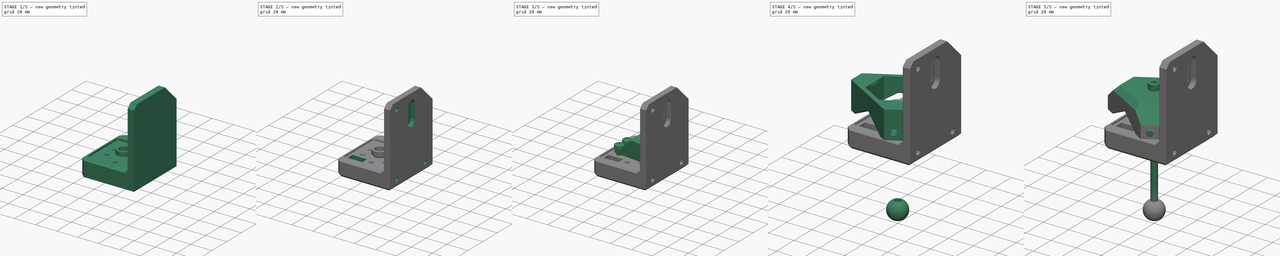
[diagram: build sequence overview — one tinted view per stage of 5, left to right]
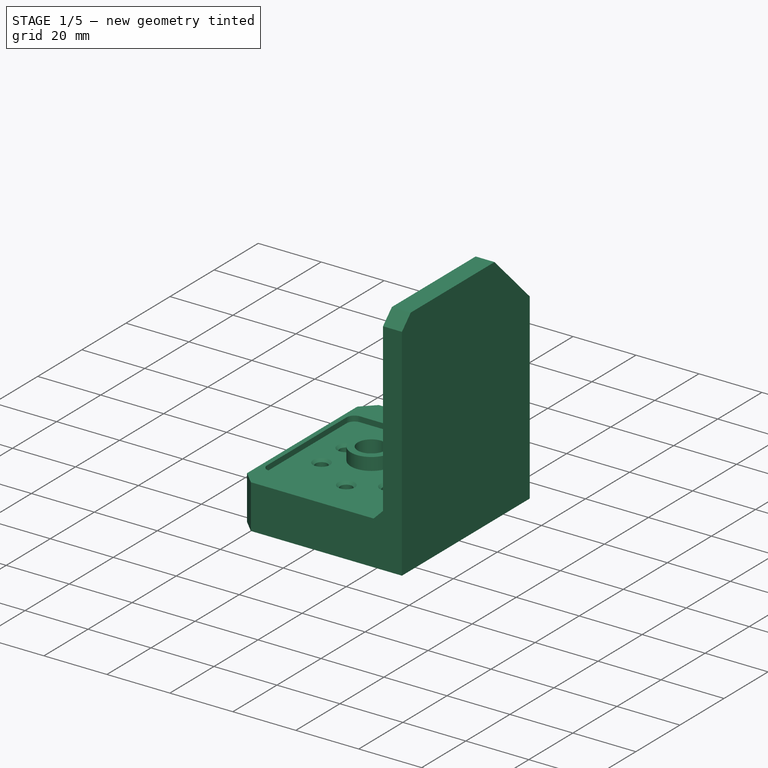
[diagram: stage 1 of 5 — iso view after this stage's code; geometry added in this stage tinted green]
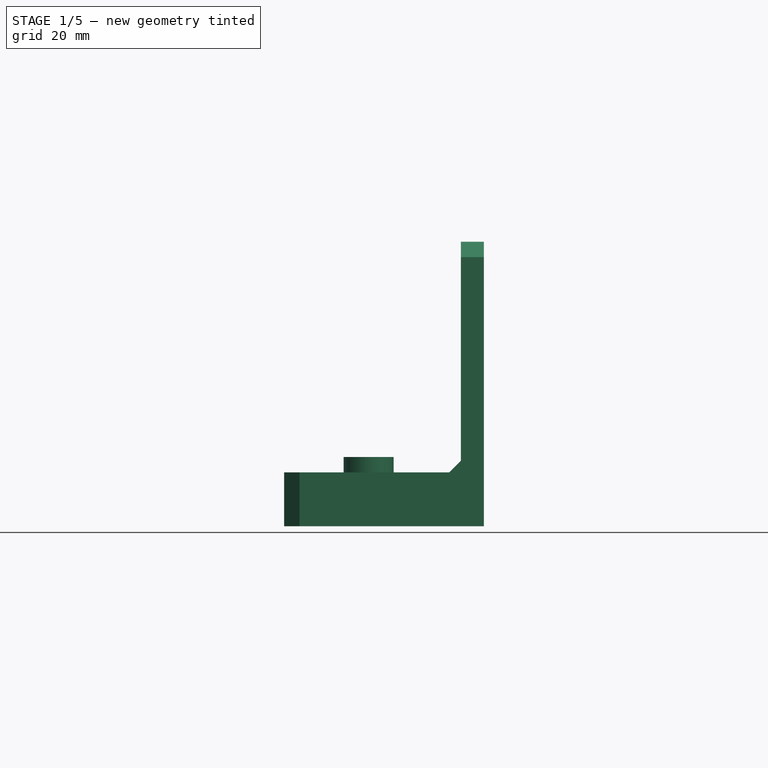
[diagram: stage 1 of 5 — front view after this stage's code; geometry added in this stage tinted green]
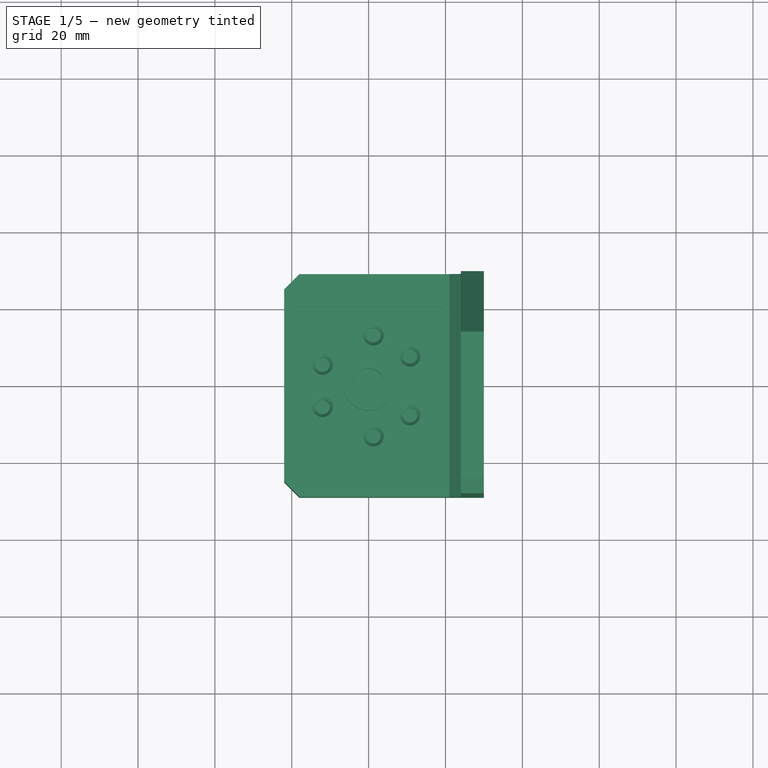
[diagram: stage 1 of 5 — top view after this stage's code; geometry added in this stage tinted green]
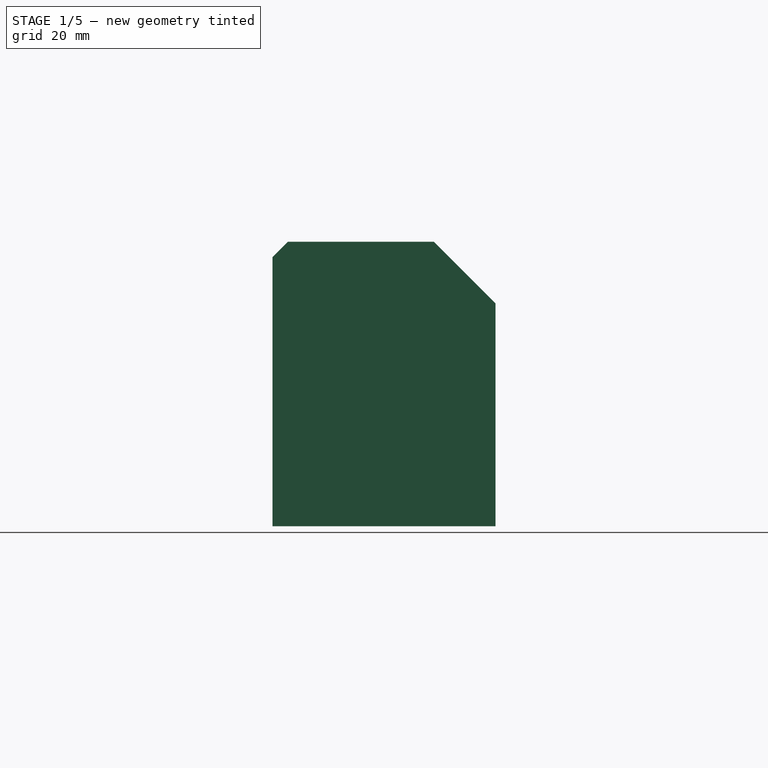
[diagram: stage 1 of 5 — right view after this stage's code; geometry added in this stage tinted green]
FCSTD DOCUMENT  (FreeCAD 0.19R24276 (Git))
Label: fabricatable-probe-assembly
License: All rights reserved
LicenseURL: http://en.wikipedia.org/wiki/All_rights_reserved
objects: Part::Feature×31, Sketcher::SketchObject×21, PartDesign::Chamfer×17, PartDesign::Pocket×10, Part::FeaturePython×8, PartDesign::Pad×6, PartDesign::Body×5, App::Part×4, PartDesign::PolarPattern×4, PartDesign::Hole×2, PartDesign::Mirrored×2, App::FeaturePython×1, PartDesign::Revolution×1, Part::Compound×1, PartDesign::Fillet×1, PartDesign::Plane×1, PartDesign::Groove×1
note: 146 computed .brp shape members not serialized (recipe doc carries the construction recipe); baked Part::Feature solids carry a one-line shape summary decoded from their .brp

FEATURE [Sketcher::SketchObject] Sketch008
  FullyConstrained = true
  MapMode = 5
  Placement = pos=(0,0,0) rot=(1,0,0;1.5708rad)
  Support = -> [XZ_Plane003]
  sketch-geometry (6):
    g0: LineSegment StartX=-22 StartY=0 StartZ=0 EndX=24 EndY=0 EndZ=0
    g1: LineSegment StartX=24 StartY=0 StartZ=0 EndX=24 EndY=60 EndZ=0
    g2: LineSegment StartX=24 StartY=60 StartZ=0 EndX=30 EndY=60 EndZ=0
    g3: LineSegment StartX=30 StartY=60 StartZ=0 EndX=30 EndY=-14 EndZ=0
    g4: LineSegment StartX=30 StartY=-14 StartZ=0 EndX=-22 EndY=-14 EndZ=0
    g5: LineSegment StartX=-22 StartY=-14 StartZ=0 EndX=-22 EndY=0 EndZ=0
  constraints (18):
    c: Horizontal(g0)
    c: Coincident(g0,g1)
    c: Vertical(g1)
    c: Coincident(g1,g2)
    c: Horizontal(g2)
    c: Coincident(g2,g3)
    c: Vertical(g3)
    c: Coincident(g3,g4)
    c: Horizontal(g4)
    c: Coincident(g4,g5)
    c: Coincident(g5,g0)
    c: Vertical(g5)
    c: DistanceX(g-2,g4) = -22
    c: PointOnObject(g0,g-1)
    c: DistanceX(g-2,g0) = 24
    c: DistanceX(g-2,g3) = 30
    c: DistanceY(g-1,g2) = 60
    c: DistanceY(g-1,g4) = -14
FEATURE [PartDesign::Pad] Pad003
  Direction = (1,1,1)
  Length = 58
  Length2 = 100
  Midplane = true
  Placement = pos=(0,0,0) rot=(1,0,0;1.5708rad)
  Profile = -> Sketch008
  Type = 0
FEATURE [PartDesign::Chamfer] Chamfer005
  Angle = 45
  Base = -> Pad003 [Edge9]
  BaseFeature = -> Pad003
  ChamferType = 0
  FlipDirection = false
  Placement = pos=(0,0,0) rot=(1,0,0;1.5708rad)
  Size = 16
  Size2 = 1
  SupportTransform = false
FEATURE [PartDesign::Chamfer] Chamfer006
  Angle = 45
  Base = -> Chamfer005 [Edge14,Edge17]
  BaseFeature = -> Chamfer005
  ChamferType = 0
  FlipDirection = false
  Placement = pos=(0,0,0) rot=(1,0,0;1.5708rad)
  Size = 4
  Size2 = 1
  SupportTransform = false
FEATURE [PartDesign::Chamfer] Chamfer007
  Angle = 45
  Base = -> Chamfer006 [Edge5]
  BaseFeature = -> Chamfer006
  ChamferType = 0
  FlipDirection = false
  Placement = pos=(0,0,0) rot=(1,0,0;1.5708rad)
  Size = 4
  Size2 = 1
  SupportTransform = false
FEATURE [PartDesign::Chamfer] Chamfer008
  Angle = 45
  Base = -> Chamfer007 [Edge11]
  BaseFeature = -> Chamfer007
  ChamferType = 0
  FlipDirection = false
  Placement = pos=(0,0,0) rot=(1,0,0;1.5708rad)
  Size = 3
  Size2 = 1
  SupportTransform = false
FEATURE [Sketcher::SketchObject] Sketch010
  FullyConstrained = true
  MapMode = 5
  Placement = pos=(0,0,0) rot=(0,0,1;3.14159rad)
  Support = -> [Chamfer008]
  sketch-geometry (5):
    g0: LineSegment StartX=20.5 StartY=20.5 StartZ=0 EndX=-20.5 EndY=20.5 EndZ=0
    g1: LineSegment StartX=-20.5 StartY=20.5 StartZ=0 EndX=-20.5 EndY=-20.5 EndZ=0
    g2: LineSegment StartX=-20.5 StartY=-20.5 StartZ=0 EndX=20.5 EndY=-20.5 EndZ=0
    g3: LineSegment StartX=20.5 StartY=-20.5 StartZ=0 EndX=20.5 EndY=20.5 EndZ=0
    g4: Circle CenterX=0 CenterY=0 CenterZ=0 NormalX=0 NormalY=0 NormalZ=1 AngleXU=0 Radius=28.9914
  constraints (14):
    c: Coincident(g0,g1)
    c: Coincident(g1,g2)
    c: Coincident(g2,g3)
    c: Coincident(g3,g0)
    c: Equal(g0,g1)
    c: Equal(g0,g2)
    c: Equal(g0,g3)
    c: PointOnObject(g0,g4)
    c: PointOnObject(g1,g4)
    c: PointOnObject(g2,g4)
    c: PointOnObject(g3,g4)
    c: Coincident(g4,g-1)
    c: Distance(g0) = 41
    c: Horizontal(g0)
FEATURE [PartDesign::Pocket] Pocket004
  BaseFeature = -> Chamfer008
  Length = 1.7
  Length2 = 100
  Placement = pos=(0,0,0) rot=(1,0,0;1.5708rad)
  Profile = -> Sketch010
  Type = 0
FEATURE [PartDesign::Fillet] Fillet
  Base = -> Pocket004 [Edge41,Edge43,Edge38,Edge39]
  BaseFeature = -> Pocket004
  Placement = pos=(0,0,0) rot=(1,0,0;1.5708rad)
  Radius = 2.5
  SupportTransform = false
FEATURE [Sketcher::SketchObject] Sketch011
  FullyConstrained = true
  MapMode = 5
  Placement = pos=(0,0,-1.7) rot=(0,0,1;3.14159rad)
  Support = -> [Fillet]
  sketch-geometry (2):
    g0: Circle CenterX=12 CenterY=5.5 CenterZ=0 NormalX=0 NormalY=0 NormalZ=1 AngleXU=0 Radius=1.9
    g1: Circle CenterX=12 CenterY=-5.5 CenterZ=0 NormalX=0 NormalY=0 NormalZ=1 AngleXU=0 Radius=1.9
  constraints (5):
    c: Symmetric(g1,g0,g-1)
    c: Diameter(g0) = 3.8
    c: Equal(g0,g1)
    c: DistanceX(g-2,g0) = 12
    c: DistanceY(g-1,g0) = 5.5
FEATURE [PartDesign::Pocket] Pocket005
  BaseFeature = -> Fillet
  Length = 5
  Length2 = 100
  Placement = pos=(0,0,0) rot=(1,0,0;1.5708rad)
  Profile = -> Sketch011
  Type = 0
FEATURE [PartDesign::PolarPattern] PolarPattern003
  Angle = 360
  Axis = -> Sketch011 [N_Axis]
  BaseFeature = -> Pocket005
  Occurrences = 3
  Originals = -> [Pocket005]
  Placement = pos=(0,0,0) rot=(1,0,0;1.5708rad)
FEATURE [PartDesign::Chamfer] Chamfer009
  Angle = 45
  Base = -> PolarPattern003 [Edge51,Edge52,Edge49,Edge50,Edge53,Edge54]
  BaseFeature = -> PolarPattern003
  ChamferType = 0
  FlipDirection = false
  Placement = pos=(0,0,0) rot=(1,0,0;1.5708rad)
  Size = 0.8
  Size2 = 1
  SupportTransform = false
FEATURE [PartDesign::Body] Body001  label="Bracket and pcb holder"
  Group = -> [Sketch008,Pad003,Chamfer005,Chamfer006,Chamfer007,Chamfer008,Sketch010,Pocket004,Fillet,Sketch011,Pocket005,PolarPattern003,Chamfer009,Sketch012,Hole001,Mirrored,DatumPlane,Mirrored001,Sketch014,Pocket006,Sketch015,Pocket007,Chamfer013,Sketch019,Pocket009,Chamfer015,Chamfer016,Sketch020,Pocket010]
  Origin = -> Origin003
  Tip = -> Pocket010
FEATURE [App::Part] Part003  label="Bracket"
  Group = -> [Screw,Array001,Compound,Nut,Array003,Part,Body001]
  Origin = -> Origin007
FEATURE [Sketcher::SketchObject] Sketch021
  FullyConstrained = true
  MapMode = 5
  Support = -> [XY_Plane008]
  sketch-geometry (2):
    g0: Circle CenterX=0 CenterY=0 CenterZ=0 NormalX=0 NormalY=0 NormalZ=1 AngleXU=0 Radius=4.35
    g1: Circle CenterX=0 CenterY=0 CenterZ=0 NormalX=0 NormalY=0 NormalZ=1 AngleXU=0 Radius=6.5
  constraints (4):
    c: Coincident(g0,g-1)
    c: Coincident(g1,g0)
    c: Diameter(g1) = 13
    c: Diameter(g0) = 8.7
FEATURE [PartDesign::Pad] Pad005
  Direction = (1,1,1)
  Length = 4
  Length2 = 100
  Profile = -> Sketch021
  Type = 0
FEATURE [PartDesign::Body] Body004  label="Bonus adapter - larger spring"
  Group = -> [Sketch021,Pad005]
  Origin = -> Origin008
  Tip = -> Pad005
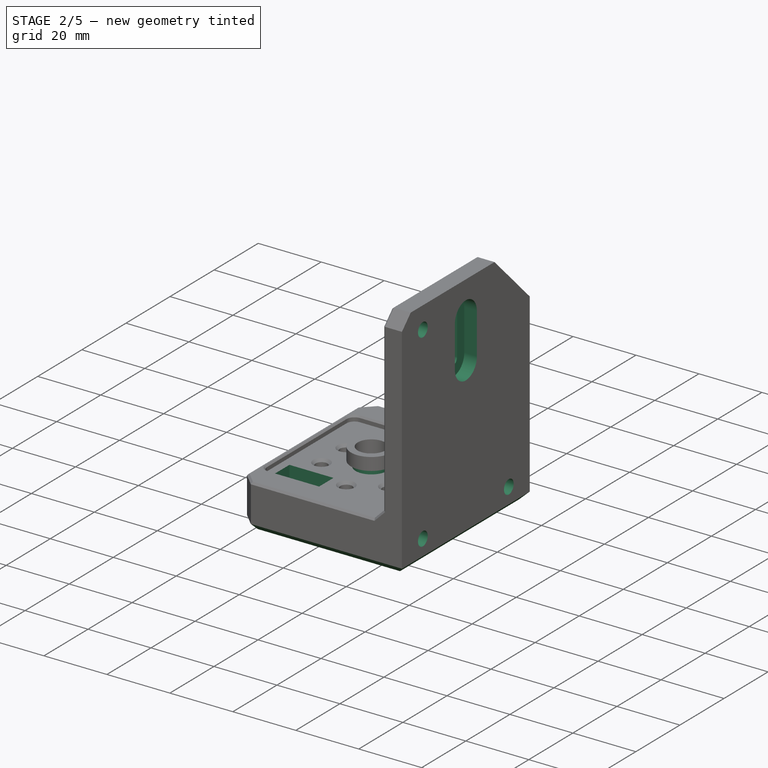
[diagram: stage 2 of 5 — iso view after this stage's code; geometry added in this stage tinted green]
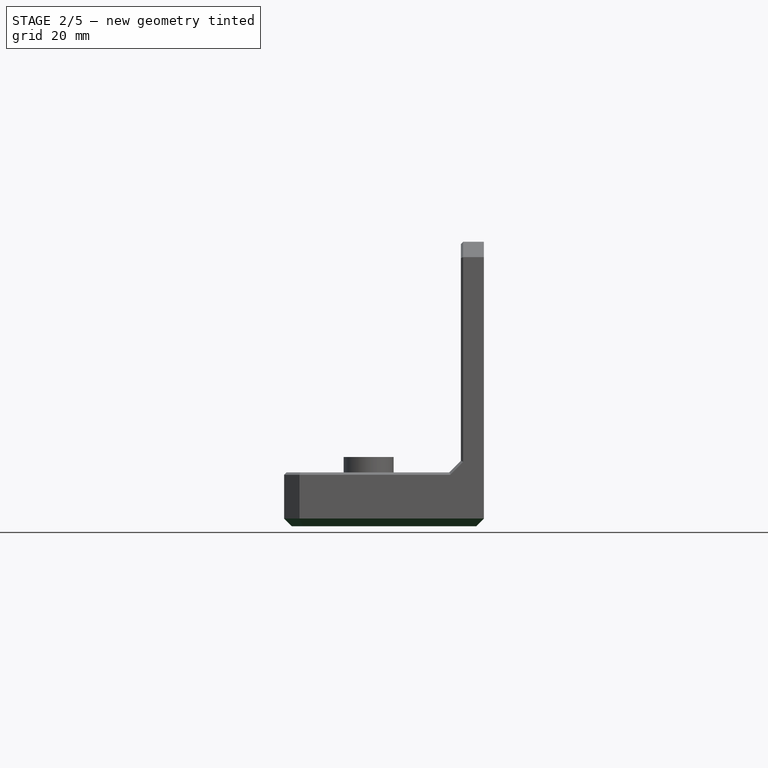
[diagram: stage 2 of 5 — front view after this stage's code; geometry added in this stage tinted green]
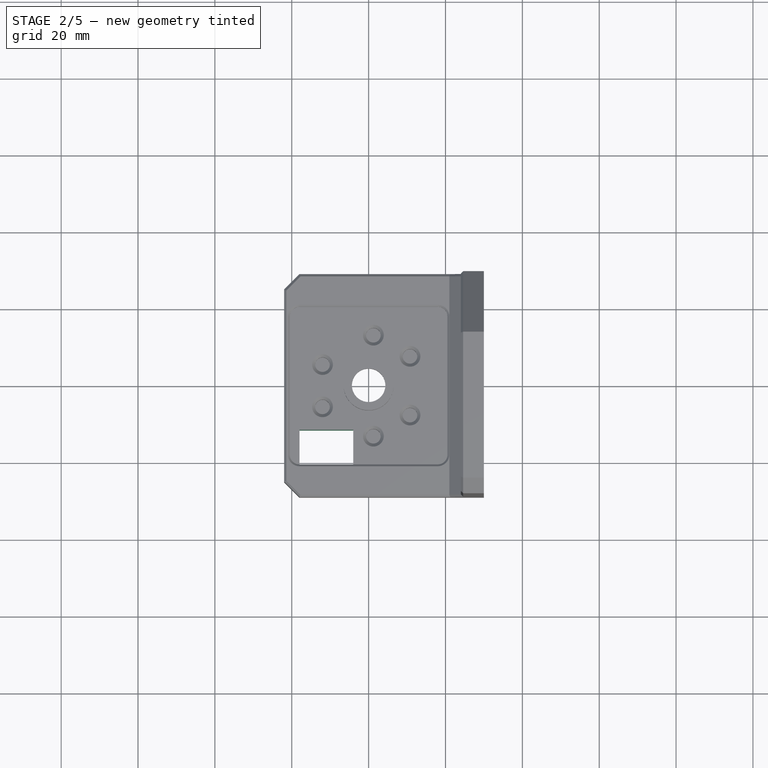
[diagram: stage 2 of 5 — top view after this stage's code; geometry added in this stage tinted green]
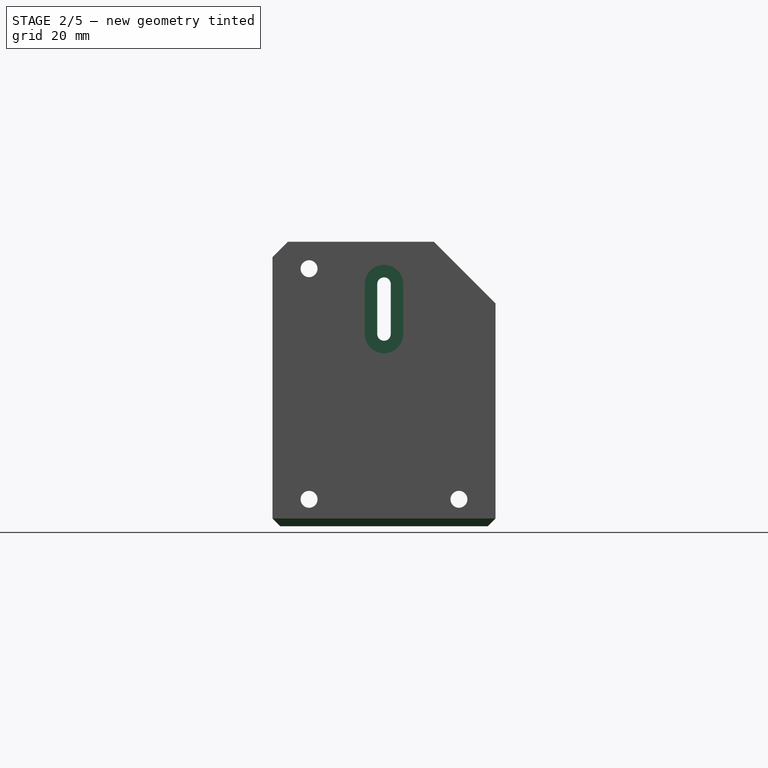
[diagram: stage 2 of 5 — right view after this stage's code; geometry added in this stage tinted green]
FEATURE [Sketcher::SketchObject] Sketch012
  FullyConstrained = true
  MapMode = 5
  Placement = pos=(-22,0,0) rot=(0.707107,0,-0.707107;3.14159rad)
  Support = -> [Chamfer009]
  sketch-geometry (1):
    g0: Circle CenterX=7 CenterY=19.5 CenterZ=0 NormalX=0 NormalY=0 NormalZ=1 AngleXU=0 Radius=2.5
  constraints (3):
    c: Diameter(g0) = 5
    c: DistanceX(g-2,g0) = 7
    c: DistanceY(g-1,g0) = 19.5
FEATURE [PartDesign::Hole] Hole001
  BaseFeature = -> Chamfer009
  Depth = 25
  DepthType = 1
  Diameter = 4.4
  DrillForDepth = false
  DrillPoint = 1
  DrillPointAngle = 118
  HoleCutCountersinkAngle = 90
  HoleCutCustomValues = false
  HoleCutDepth = 46
  HoleCutDiameter = 8.5
  HoleCutType = 1
  ModelActualThread = false
  Placement = pos=(0,0,0) rot=(1,0,0;1.5708rad)
  Profile = -> Sketch012
  Tapered = false
  TaperedAngle = 90
  ThreadAngle = 0
  ThreadClass = 0
  ThreadCutOffInner = 0
  ThreadCutOffOuter = 0
  ThreadDirection = 0
  ThreadFit = 0
  ThreadPitch = 0
  ThreadSize = 0
  ThreadType = 0
  Threaded = false
FEATURE [PartDesign::Mirrored] Mirrored
  BaseFeature = -> Hole001
  MirrorPlane = -> XZ_Plane003
  Originals = -> [Hole001]
  Placement = pos=(0,0,0) rot=(1,0,0;1.5708rad)
FEATURE [PartDesign::Plane] DatumPlane
  Length = 66.296
  Placement = pos=(0,0,23) rot=(0,0,1;0rad)
  ResizeMode = 0
  Width = 69.296
FEATURE [PartDesign::Mirrored] Mirrored001
  BaseFeature = -> Mirrored
  MirrorPlane = -> DatumPlane
  Originals = -> [Hole001]
  Placement = pos=(0,0,0) rot=(1,0,0;1.5708rad)
  Refine = true
FEATURE [Sketcher::SketchObject] Sketch014
  FullyConstrained = true
  MapMode = 5
  Placement = pos=(30,0,0) rot=(0.707107,0,0.707107;3.14159rad)
  Support = -> [Mirrored001]
  sketch-geometry (4):
    g0: ArcOfCircle CenterX=36 CenterY=0 CenterZ=0 NormalX=0 NormalY=0 NormalZ=1 AngleXU=0 Radius=5 StartAngle=1.5708 EndAngle=4.71239
    g1: ArcOfCircle CenterX=49 CenterY=7e-16 CenterZ=0 NormalX=0 NormalY=0 NormalZ=1 AngleXU=0 Radius=5 StartAngle=4.71239 EndAngle=7.85398
    g2: LineSegment StartX=36 StartY=-5 StartZ=0 EndX=49 EndY=-5 EndZ=0
    g3: LineSegment StartX=36 StartY=5 StartZ=0 EndX=49 EndY=5 EndZ=0
  constraints (10):
    c: Tangent(g0,g3) = 1.5708
    c: Tangent(g0,g2) = -1.5708
    c: Tangent(g2,g1) = -1.5708
    c: Tangent(g3,g1) = 1.5708
    c: Horizontal(g2)
    c: Equal(g0,g1)
    c: PointOnObject(g0,g-1)
    c: DistanceX(g-2,g1) = 49
    c: DistanceX(g-2,g0) = 36
    c: Diameter(g1) = 10
FEATURE [PartDesign::Pocket] Pocket006
  BaseFeature = -> Mirrored001
  Length = 4
  Length2 = 100
  Placement = pos=(0,0,0) rot=(1,0,0;1.5708rad)
  Profile = -> Sketch014
  Type = 0
FEATURE [Sketcher::SketchObject] Sketch015
  ExternalGeometry = -> [Pocket006]
  FullyConstrained = true
  MapMode = 5
  Placement = pos=(26,0,-5.5e-15) rot=(0.707107,0,0.707107;3.14159rad)
  Support = -> [Pocket006]
  sketch-geometry (4):
    g0: ArcOfCircle CenterX=36 CenterY=0 CenterZ=0 NormalX=0 NormalY=0 NormalZ=1 AngleXU=0 Radius=1.75 StartAngle=1.5708 EndAngle=4.71239
    g1: ArcOfCircle CenterX=49 CenterY=-5.129e-12 CenterZ=0 NormalX=0 NormalY=0 NormalZ=1 AngleXU=0 Radius=1.75 StartAngle=4.71239 EndAngle=7.85398
    g2: LineSegment StartX=36 StartY=-1.75 StartZ=0 EndX=49 EndY=-1.75 EndZ=0
    g3: LineSegment StartX=36 StartY=1.75 StartZ=0 EndX=49 EndY=1.75 EndZ=0
  constraints (8):
    c: Tangent(g0,g3) = 1.5708
    c: Tangent(g0,g2) = -1.5708
    c: Tangent(g2,g1) = -1.5708
    c: Tangent(g3,g1) = 1.5708
    c: Horizontal(g2)
    c: Coincident(g0,g-3)
    c: Coincident(g1,g-4)
    c: Diameter(g1) = 3.5
FEATURE [PartDesign::Pocket] Pocket007
  BaseFeature = -> Pocket006
  Length = 5
  Length2 = 100
  Placement = pos=(0,0,0) rot=(1,0,0;1.5708rad)
  Profile = -> Sketch015
  Type = 0
FEATURE [PartDesign::Chamfer] Chamfer013
  Angle = 45
  Base = -> Pocket007 [Face36]
  BaseFeature = -> Pocket007
  ChamferType = 0
  FlipDirection = false
  Placement = pos=(0,0,0) rot=(1,0,0;1.5708rad)
  Size = 2
  Size2 = 1
  SupportTransform = false
FEATURE [PartDesign::Body] Body003  label="Spring holder"
  Group = -> [Sketch016,Pad004,Chamfer010,Chamfer011,Chamfer012,Sketch017,Groove,Sketch018,Pocket008,Chamfer014]
  Origin = -> Origin006
  Placement = pos=(0,0,41) rot=(0,0,1;0rad)
  Tip = -> Chamfer014
  expr: .Placement.Base.z = 27 + 14
FEATURE [Sketcher::SketchObject] Sketch019
  ExternalGeometry = -> [Chamfer013]
  FullyConstrained = true
  MapMode = 5
  Placement = pos=(0,0,-1.7) rot=(0,0,1;3.14159rad)
  Support = -> [Chamfer013]
  sketch-geometry (4):
    g0: LineSegment StartX=18 StartY=20.5 StartZ=0 EndX=4 EndY=20.5 EndZ=0
    g1: LineSegment StartX=4 StartY=20.5 StartZ=0 EndX=4 EndY=11.5 EndZ=0
    g2: LineSegment StartX=4 StartY=11.5 StartZ=0 EndX=18 EndY=11.5 EndZ=0
    g3: LineSegment StartX=18 StartY=11.5 StartZ=0 EndX=18 EndY=20.5 EndZ=0
  constraints (11):
    c: Coincident(g0,g1)
    c: Coincident(g1,g2)
    c: Coincident(g2,g3)
    c: Coincident(g3,g0)
    c: Horizontal(g0)
    c: Horizontal(g2)
    c: Vertical(g1)
    c: Vertical(g3)
    c: Coincident(g0,g-3)
    c: Distance(g1) = 9
    c: Distance(g2) = 14
FEATURE [PartDesign::Pocket] Pocket009
  BaseFeature = -> Chamfer013
  Length = 5
  Length2 = 100
  Placement = pos=(0,0,0) rot=(1,0,0;1.5708rad)
  Profile = -> Sketch019
  Type = 1
FEATURE [PartDesign::Chamfer] Chamfer015
  Angle = 45
  Base = -> Pocket009 [Edge3,Edge5,Edge7,Edge40,Edge44,Edge43,Edge42,Edge23,Edge39,Edge24,Edge25,Edge9]
  BaseFeature = -> Pocket009
  ChamferType = 0
  FlipDirection = false
  Placement = pos=(0,0,0) rot=(1,0,0;1.5708rad)
  Size = 0.6
  Size2 = 1
  SupportTransform = false
FEATURE [PartDesign::Chamfer] Chamfer016
  Angle = 45
  Base = -> Chamfer015 [Edge48]
  BaseFeature = -> Chamfer015
  ChamferType = 0
  FlipDirection = false
  Placement = pos=(0,0,0) rot=(1,0,0;1.5708rad)
  Size = 0.49
  Size2 = 1
  SupportTransform = false
FEATURE [Sketcher::SketchObject] Sketch020
  FullyConstrained = true
  MapMode = 5
  Placement = pos=(0,0,-1.7) rot=(0,0,1;3.14159rad)
  Support = -> [Chamfer016]
  sketch-geometry (1):
    g0: Circle CenterX=0 CenterY=0 CenterZ=0 NormalX=0 NormalY=0 NormalZ=1 AngleXU=0 Radius=5
  constraints (2):
    c: Coincident(g0,g-1)
    c: Diameter(g0) = 10
FEATURE [PartDesign::Pocket] Pocket010
  BaseFeature = -> Chamfer016
  Length = 5
  Length2 = 100
  Placement = pos=(0,0,0) rot=(1,0,0;1.5708rad)
  Profile = -> Sketch020
  Type = 1
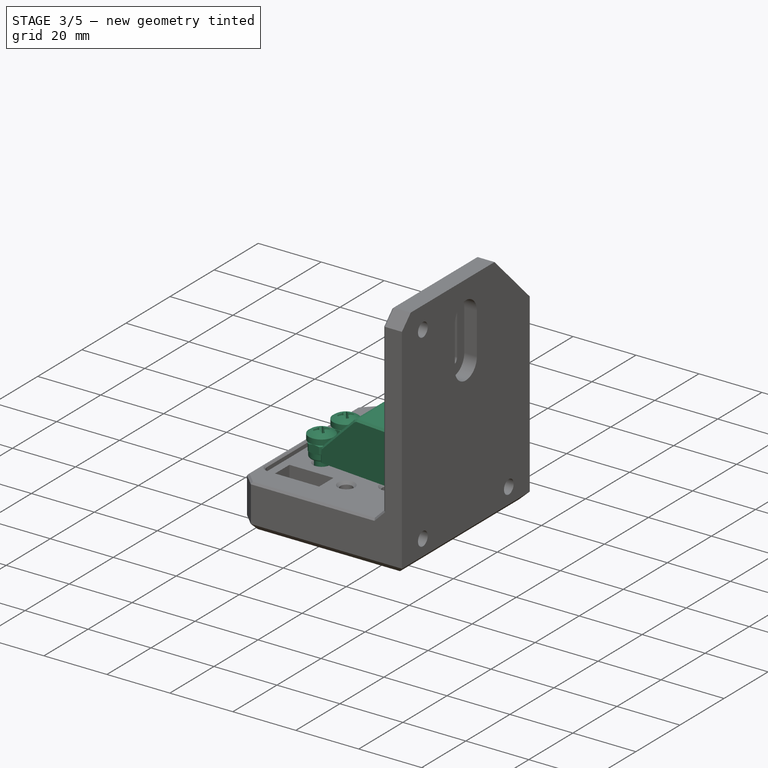
[diagram: stage 3 of 5 — iso view after this stage's code; geometry added in this stage tinted green]
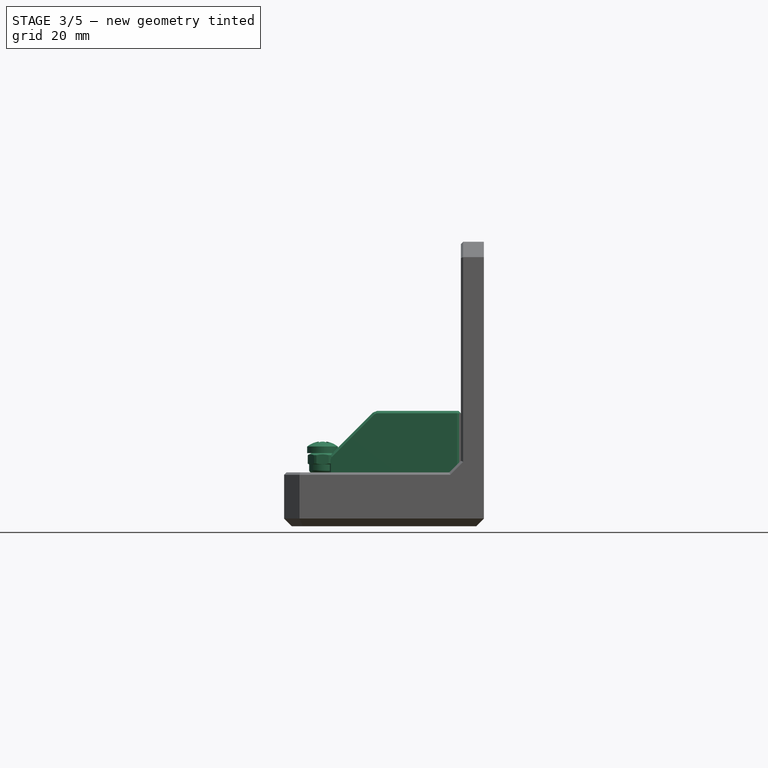
[diagram: stage 3 of 5 — front view after this stage's code; geometry added in this stage tinted green]
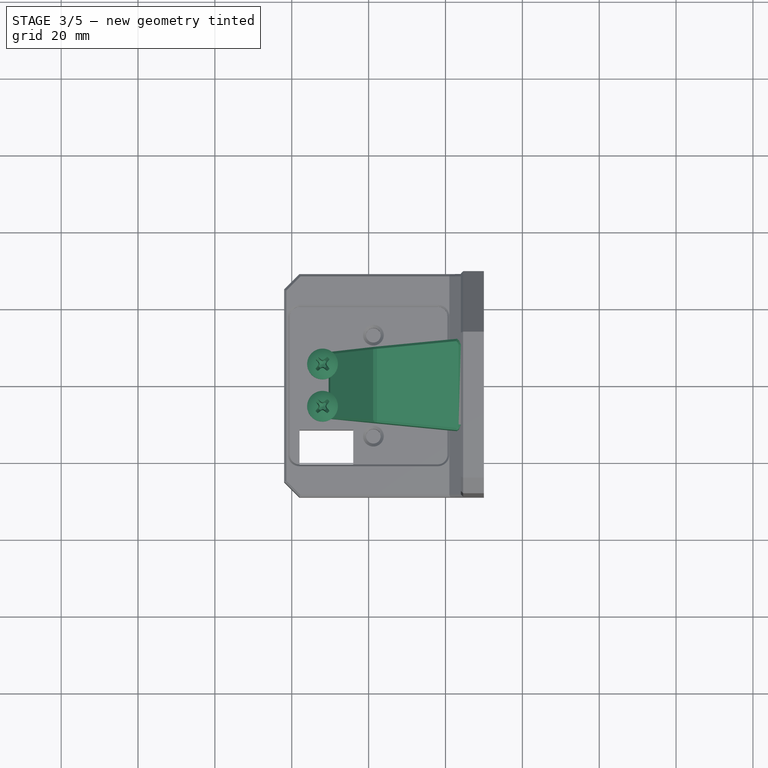
[diagram: stage 3 of 5 — top view after this stage's code; geometry added in this stage tinted green]
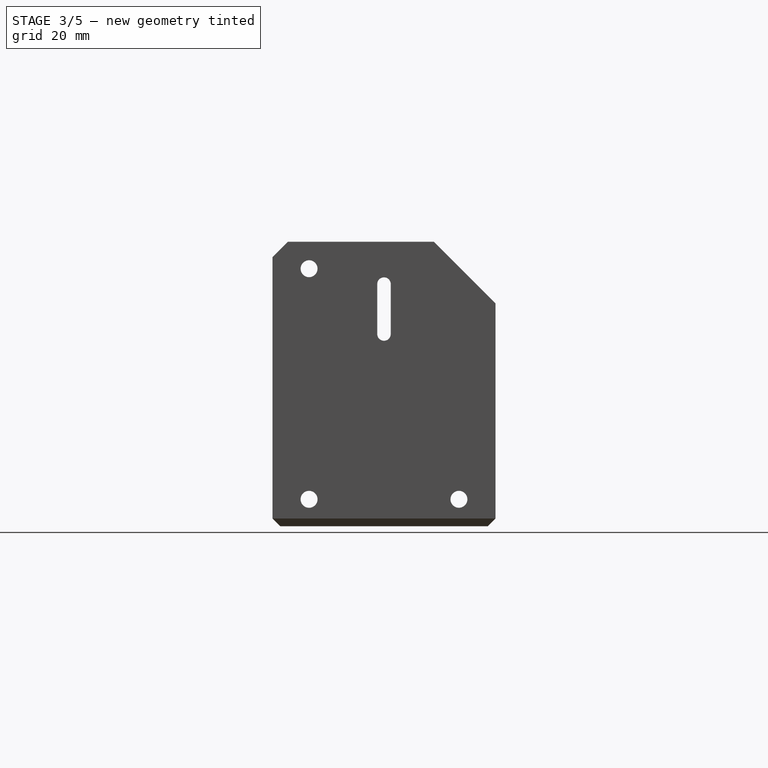
[diagram: stage 3 of 5 — right view after this stage's code; geometry added in this stage tinted green]
FEATURE [Part::Feature] Part__Feature  label="pcb board"
  shape: bbox 40 x 40 x 1.6 mm, 98 faces (baked)
FEATURE [Part::Feature] Path
  shape: bbox 4.2 x 4.2 x 2e-07 mm, 0 faces, 0 solids (baked)
FEATURE [Part::Feature] Path001
  shape: bbox 4.2 x 4.2 x 2e-07 mm, 0 faces, 0 solids (baked)
FEATURE [Part::Feature] Path002
  shape: bbox 4.2 x 4.2 x 2e-07 mm, 0 faces, 0 solids (baked)
FEATURE [Part::Feature] Path003
  shape: bbox 10.06 x 10.06 x 2e-07 mm, 0 faces, 0 solids (baked)
FEATURE [Part::Feature] Path004
  shape: bbox 4.2 x 4.2 x 2e-07 mm, 0 faces, 0 solids (baked)
FEATURE [Part::Feature] Path005
  shape: bbox 4.2 x 4.2 x 2e-07 mm, 0 faces, 0 solids (baked)
FEATURE [Part::Feature] Path006
  shape: bbox 4.2 x 4.2 x 2e-07 mm, 0 faces, 0 solids (baked)
FEATURE [Part::Feature] Path007
  shape: bbox 0.8399 x 0.8399 x 2e-07 mm, 0 faces, 0 solids (baked)
FEATURE [Part::Feature] Path008
  shape: bbox 0.8399 x 0.8399 x 2e-07 mm, 0 faces, 0 solids (baked)
FEATURE [Part::Feature] Path009
  shape: bbox 0.8399 x 0.8399 x 2e-07 mm, 0 faces, 0 solids (baked)
FEATURE [Part::Feature] Path010
  shape: bbox 0.954 x 0.954 x 2e-07 mm, 0 faces, 0 solids (baked)
FEATURE [Part::Feature] Path011
  shape: bbox 4.063 x 1.815 x 2e-07 mm, 0 faces, 0 solids (baked)
FEATURE [Part::Feature] Path012
  shape: bbox 30.57 x 35.84 x 2e-07 mm, 0 faces, 0 solids (baked)
FEATURE [Part::Feature] Path013
  shape: bbox 39.8 x 39.8 x 2e-07 mm, 0 faces, 0 solids (baked)
FEATURE [Part::Feature] Path014
  shape: bbox 4.063 x 1.815 x 2e-07 mm, 0 faces, 0 solids (baked)
FEATURE [Part::Feature] Path015
  shape: bbox 3.626 x 3.626 x 2e-07 mm, 0 faces, 0 solids (baked)
FEATURE [Part::Feature] Path016
  shape: bbox 36.88 x 36.41 x 2e-07 mm, 0 faces, 0 solids (baked)
FEATURE [Part::Feature] Path017
  shape: bbox 0.954 x 0.954 x 2e-07 mm, 0 faces, 0 solids (baked)
FEATURE [Part::Feature] Path018
  shape: bbox 7.552 x 22.84 x 2e-07 mm, 0 faces, 0 solids (baked)
FEATURE [Part::Feature] Path019
  shape: bbox 3.626 x 3.626 x 2e-07 mm, 0 faces, 0 solids (baked)
FEATURE [Part::Feature] Path020
  shape: bbox 20.79 x 15.19 x 2e-07 mm, 0 faces, 0 solids (baked)
FEATURE [Part::Feature] Path021
  shape: bbox 3.626 x 3.626 x 2e-07 mm, 0 faces, 0 solids (baked)
FEATURE [Part::Feature] Path022
  shape: bbox 2.915 x 5.163 x 2e-07 mm, 0 faces, 0 solids (baked)
FEATURE [Part::Feature] Path023
  shape: bbox 6.452 x 21.74 x 2e-07 mm, 0 faces, 0 solids (baked)
FEATURE [Part::Feature] Path024
  shape: bbox 1.815 x 4.063 x 2e-07 mm, 0 faces, 0 solids (baked)
FEATURE [Part::Feature] Path025
  shape: bbox 3.626 x 3.626 x 2e-07 mm, 0 faces, 0 solids (baked)
FEATURE [Part::Feature] Path026
  shape: bbox 19.69 x 14.09 x 2e-07 mm, 0 faces, 0 solids (baked)
FEATURE [Part::Feature] Path027
  shape: bbox 5.163 x 2.915 x 2e-07 mm, 0 faces, 0 solids (baked)
FEATURE [Part::Feature] Path028
  shape: bbox 5.163 x 2.915 x 2e-07 mm, 0 faces, 0 solids (baked)
FEATURE [Part::Feature] Path029
  shape: bbox 40 x 40 x 2e-07 mm, 0 faces, 0 solids (baked)
FEATURE [App::Part] Part001  label="traces"
  Group = -> [Path014,Path,Path011,Path001,Path020,Path002,Path016,Path003,Path004,Path005,Path024,Path006,Path007,Path008,Path009,Path010,Path012,Path013,Path015,Path017,Path018,Path019,Path021,Path023,Path022,Path025,Path026,Path027,Path028,Path029]
  Origin = -> Origin001
  Placement = pos=(-108,139.7,0) rot=(0,0,1;0rad)
FEATURE [App::Part] Part  label="pcb board with traces"
  Group = -> [Part__Feature,Part001]
  Origin = -> Origin
FEATURE [Part::FeaturePython] Screw  label="M4x10-Screw"  # Fasteners workbench fastener (typed FeaturePython)
  diameter = 6
  invert = false
  length = 3
  lengthCustom = 10
  matchOuter = false
  offset = 0
  thread = false
  type = 35
FEATURE [PartDesign::Body] Body002  label="Tip"
  Group = -> [Sketch009,Revolution]
  Origin = -> Origin005
  Tip = -> Revolution
FEATURE [App::Part] Part002  label="Probe"
  Group = -> [Body,Screw001,Array002,Screw005,Screw004,Body002]
  Origin = -> Origin004
  Placement = pos=(0,0,4.2) rot=(0,0,1;0rad)
FEATURE [Part::FeaturePython] Nut  label="M4-Nut"  # Fasteners workbench fastener (typed FeaturePython)
  Placement = pos=(0,0,0) rot=(0,1,0;3.14159rad)
  diameter = 2
  invert = false
  matchOuter = false
  offset = 0
  thread = false
  type = 5
FEATURE [Part::Compound] Compound
  Links = -> [Nut,Screw]
  Placement = pos=(0,0,5) rot=(0,0,1;0rad)
FEATURE [Part::FeaturePython] Array001  # Draft array (typed FeaturePython)
  Angle = 360
  ArrayType = 0
  Axis = (0,0,1)
  Base = -> Compound
  Center = (0,0,0)
  Count = 2
  ExpandArray = false
  Fuse = false
  IntervalAxis = (0,0,0)
  IntervalX = (100,0,0)
  IntervalY = (0,11,0)
  IntervalZ = (0,0,100)
  NumberCircles = 3
  NumberPolar = 5
  NumberX = 1
  NumberY = 2
  NumberZ = 1
  Placement = pos=(-12,-5.5,0) rot=(0,0,1;0rad)
  PlacementList = 2 placements: [(0,0,5),(0,11,5)]
  RadialDistance = 50
  ScaleList = (2) [(1,1,1),(1,1,1)]
  Symmetry = 1
  TangentialDistance = 25
FEATURE [Sketcher::SketchObject] Sketch016
  FullyConstrained = false
  MapMode = 5
  Support = -> [XY_Plane006]
  sketch-geometry (3):
    g0: LineSegment StartX=-100 StartY=-3.6e-15 StartZ=0 EndX=24 EndY=-12 EndZ=0
    g1: LineSegment StartX=24 StartY=-12 StartZ=0 EndX=24 EndY=12 EndZ=0
    g2: LineSegment StartX=24 StartY=12 StartZ=0 EndX=-100 EndY=-3.6e-15 EndZ=0
  constraints (7):
    c: Coincident(g0,g1)
    c: Coincident(g1,g2)
    c: Coincident(g2,g0)
    c: DistanceX(g-2,g1) = 24
    c: DistanceX(g-2,g0) = -100
    c: Symmetric(g1,g0,g-1)
    c: DistanceY(g-1,g0) = -12
FEATURE [PartDesign::Pad] Pad004
  Direction = (1,1,1)
  Length = 16
  Length2 = 100
  Profile = -> Sketch016
  Type = 0
FEATURE [PartDesign::Chamfer] Chamfer010
  Angle = 45
  Base = -> Pad004 [Edge1]
  BaseFeature = -> Pad004
  ChamferType = 0
  FlipDirection = false
  Size = 90
  Size2 = 1
  SupportTransform = false
FEATURE [PartDesign::Chamfer] Chamfer011
  Angle = 45
  Base = -> Chamfer010 [Edge9]
  BaseFeature = -> Chamfer010
  ChamferType = 0
  FlipDirection = false
  Size = 12
  Size2 = 1
  SupportTransform = false
FEATURE [PartDesign::Chamfer] Chamfer012
  Angle = 45
  Base = -> Chamfer011 [Edge5,Edge15]
  BaseFeature = -> Chamfer011
  ChamferType = 0
  FlipDirection = false
  Size = 1
  Size2 = 1
  SupportTransform = false
FEATURE [Sketcher::SketchObject] Sketch017
  FullyConstrained = true
  MapMode = 5
  Placement = pos=(0,0,0) rot=(1,0,0;1.5708rad)
  Support = -> [XZ_Plane006]
  expr: Constraints[2] = 14.5 / 2
  sketch-geometry (1):
    g0: Circle CenterX=7.25 CenterY=0 CenterZ=0 NormalX=0 NormalY=0 NormalZ=1 AngleXU=0 Radius=1
  constraints (3):
    c: PointOnObject(g0,g-1)
    c: Diameter(g0) = 2
    c: DistanceX(g-2,g0) = 7.25
FEATURE [PartDesign::Groove] Groove
  Angle = 360
  Axis = (0,-2e-16,1)
  Base = (0,0,0)
  BaseFeature = -> Chamfer012
  Profile = -> Sketch017
  ReferenceAxis = -> Sketch017 [V_Axis]
FEATURE [Sketcher::SketchObject] Sketch018
  FullyConstrained = true
  MapMode = 5
  Placement = pos=(24,0,0) rot=(0.57735,0.57735,0.57735;2.0944rad)
  Support = -> [Groove]
  sketch-geometry (1):
    g0: Circle CenterX=0 CenterY=5 CenterZ=0 NormalX=0 NormalY=0 NormalZ=1 AngleXU=0 Radius=1.35
  constraints (3):
    c: PointOnObject(g0,g-2)
    c: Diameter(g0) = 2.7
    c: DistanceY(g-1,g0) = 5
FEATURE [PartDesign::Pocket] Pocket008
  BaseFeature = -> Groove
  Length = 20
  Length2 = 100
  Profile = -> Sketch018
  Type = 0
FEATURE [PartDesign::Chamfer] Chamfer014
  Angle = 45
  Base = -> Pocket008 [Face7,Face6,Face5,Edge15,Edge3]
  BaseFeature = -> Pocket008
  ChamferType = 0
  FlipDirection = false
  Size = 0.6
  Size2 = 1
  SupportTransform = false
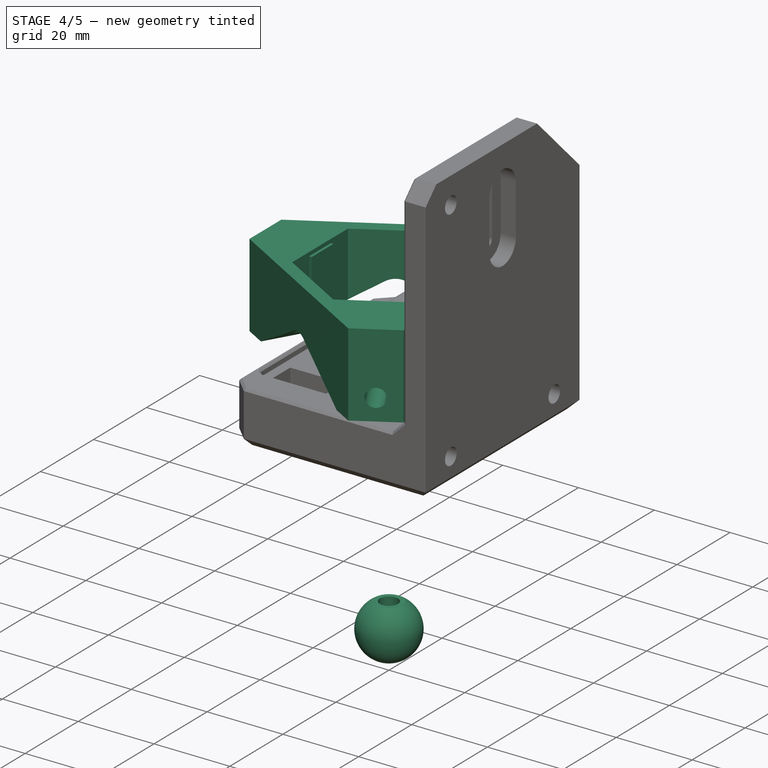
[diagram: stage 4 of 5 — iso view after this stage's code; geometry added in this stage tinted green]
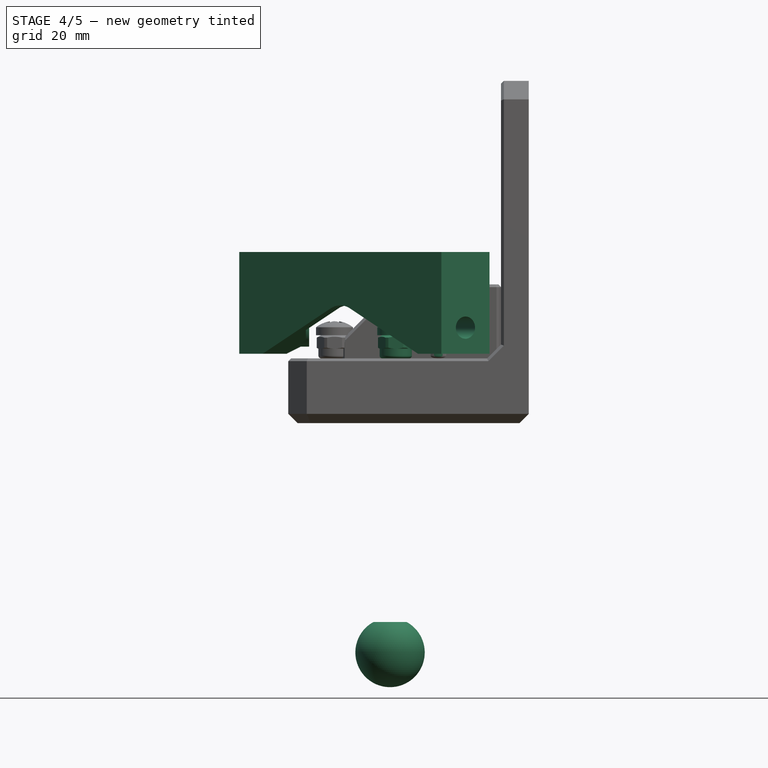
[diagram: stage 4 of 5 — front view after this stage's code; geometry added in this stage tinted green]
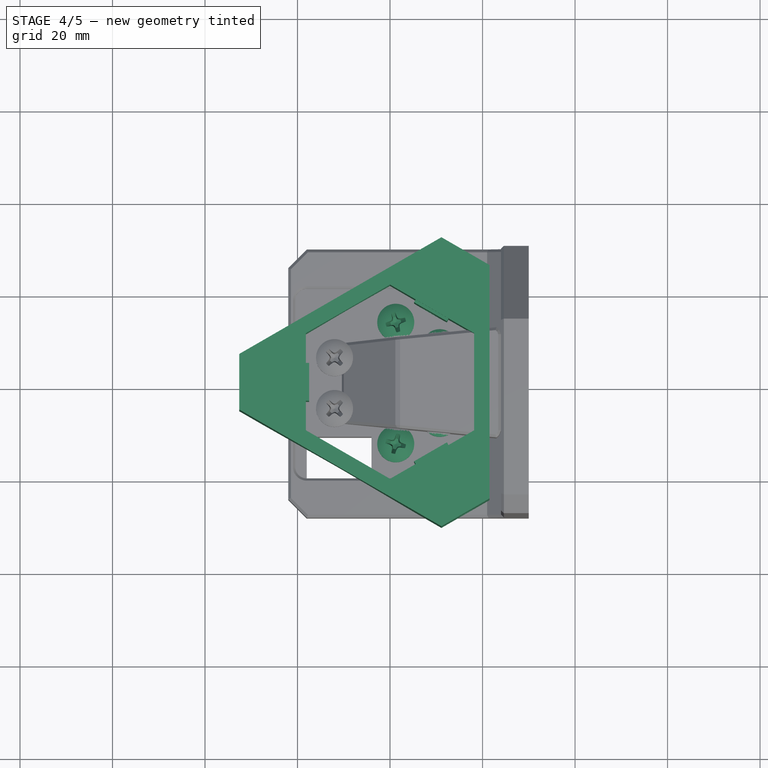
[diagram: stage 4 of 5 — top view after this stage's code; geometry added in this stage tinted green]
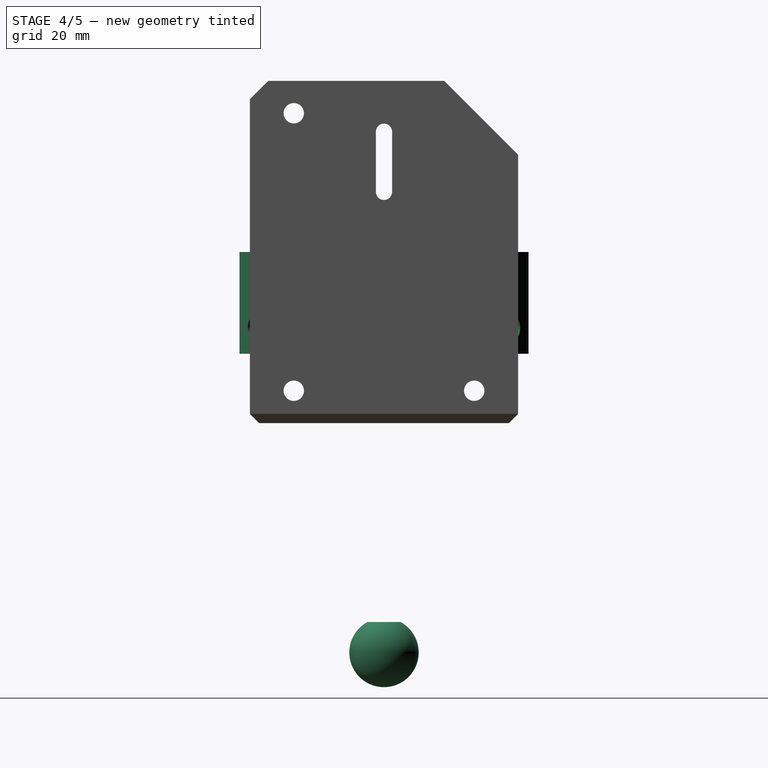
[diagram: stage 4 of 5 — right view after this stage's code; geometry added in this stage tinted green]
FEATURE [Sketcher::SketchObject] Sketch
  AttachmentOffset = pos=(0,0,1) rot=(0,0,1;0rad)
  FullyConstrained = true
  MapMode = 5
  Placement = pos=(0,0,1) rot=(0,0,1;0rad)
  Support = -> [XY_Plane002]
  sketch-geometry (11):
    g0: LineSegment StartX=-43 StartY=0 StartZ=0 EndX=21.5 EndY=-37.2391 EndZ=0
    g1: LineSegment StartX=21.5 StartY=-37.2391 StartZ=0 EndX=21.5 EndY=37.2391 EndZ=0
    g2: LineSegment StartX=21.5 StartY=37.2391 StartZ=0 EndX=-43 EndY=0 EndZ=0
    g3: Circle CenterX=0 CenterY=0 CenterZ=0 NormalX=0 NormalY=0 NormalZ=1 AngleXU=0 Radius=43
    g4: LineSegment StartX=0 StartY=-21 StartZ=0 EndX=18.1865 EndY=-10.5 EndZ=0
    g5: LineSegment StartX=18.1865 StartY=-10.5 StartZ=0 EndX=18.1865 EndY=10.5 EndZ=0
    g6: LineSegment StartX=18.1865 StartY=10.5 StartZ=0 EndX=-3.6e-15 EndY=21 EndZ=0
    g7: LineSegment StartX=-3.6e-15 StartY=21 StartZ=0 EndX=-18.1865 EndY=10.5 EndZ=0
    g8: LineSegment StartX=-18.1865 StartY=10.5 StartZ=0 EndX=-18.1865 EndY=-10.5 EndZ=0
    g9: LineSegment StartX=-18.1865 StartY=-10.5 StartZ=0 EndX=0 EndY=-21 EndZ=0
    g10: Circle CenterX=0 CenterY=0 CenterZ=0 NormalX=0 NormalY=0 NormalZ=1 AngleXU=0 Radius=21
  constraints (27):
    c: Coincident(g0,g1)
    c: Coincident(g1,g2)
    c: Coincident(g2,g0)
    c: Equal(g0,g1)
    c: Equal(g0,g2)
    c: PointOnObject(g0,g3)
    c: PointOnObject(g1,g3)
    c: PointOnObject(g2,g3)
    c: Coincident(g3,g-1)
    c: PointOnObject(g2,g-1)
    c: Coincident(g4,g5)
    c: Coincident(g5,g6)
    c: Coincident(g6,g7)
    c: Coincident(g7,g8)
    c: Coincident(g8,g9)
    c: Coincident(g9,g4)
    c: Equal(g4, g5-g9) x5
    c: PointOnObject(g4,g10)
    c: PointOnObject(g5,g10)
    c: PointOnObject(g6,g10)
    c: PointOnObject(g7,g10)
    c: PointOnObject(g8,g10)
    c: PointOnObject(g9,g10)
    c: Coincident(g10,g-1)
    c: PointOnObject(g9,g-2)
    c: DistanceX(g-2,g0) = -43
    c: DistanceY(g-1,g4) = -21
FEATURE [PartDesign::Pad] Pad
  Direction = (1,1,1)
  Length = 22
  Length2 = 100
  Profile = -> Sketch
  Type = 0
FEATURE [PartDesign::Chamfer] Chamfer
  Angle = 45
  Base = -> Pad [Edge2,Edge1,Edge5]
  BaseFeature = -> Pad
  ChamferType = 0
  FlipDirection = false
  Size = 12
  Size2 = 1
  SupportTransform = false
FEATURE [App::FeaturePython] dd  label="Parameters"  # WARN: FeaturePython — macro-defined, semantics opaque (R4)
  DynamicData = Created with DynamicData (v2.32) workbench. | This is a simple container object built | for holding custom properties.  Worbench | installation is not required to use the | container object -- instead only for | adding / removing custom properties. | (But this can also be done via scripting.)
  ddHor_screw_height = 6.65
FEATURE [Sketcher::SketchObject] Sketch001
  FullyConstrained = true
  MapMode = 5
  Placement = pos=(0,0,0) rot=(0.57735,0.57735,0.57735;2.0944rad)
  Support = -> [YZ_Plane002]
  expr: Constraints[1] = dd.ddHor_screw_height
  sketch-geometry (1):
    g0: Circle CenterX=0 CenterY=6.65 CenterZ=0 NormalX=0 NormalY=0 NormalZ=1 AngleXU=0 Radius=2.4
  constraints (3):
    c: PointOnObject(g0,g-2)
    c: DistanceY(g-1,g0) = 6.65
    c: Diameter(g0) = 4.8
FEATURE [Sketcher::SketchObject] Sketch002
  FullyConstrained = true
  MapMode = 5
  Placement = pos=(0,0,0) rot=(0.57735,0.57735,0.57735;2.0944rad)
  Support = -> [YZ_Plane002]
  expr: Constraints[0] = dd.ddHor_screw_height
  sketch-geometry (5):
    g0: Circle CenterX=-8.3e-15 CenterY=6.65 CenterZ=0 NormalX=0 NormalY=0 NormalZ=1 AngleXU=0 Radius=4.8
    g1: ArcOfCircle CenterX=-8.3e-15 CenterY=6.65 CenterZ=0 NormalX=0 NormalY=0 NormalZ=1 AngleXU=0 Radius=4.8 StartAngle=1.0472 EndAngle=2.0944
    g2: LineSegment StartX=-2.4 StartY=10.8069 StartZ=0 EndX=-21.1181 EndY=0 EndZ=0
    g3: LineSegment StartX=-21.1181 StartY=0 StartZ=0 EndX=21.1181 EndY=0 EndZ=0
    g4: LineSegment StartX=21.1181 StartY=0 StartZ=0 EndX=2.4 EndY=10.8069 EndZ=0
  constraints (12):
    c: DistanceY(g-1,g0) = 6.65
    c: Diameter(g0) = 9.6
    c: Coincident(g1,g0)
    c: PointOnObject(g2,g-1)
    c: Coincident(g2,g3)
    c: Coincident(g3,g4)
    c: Angle(g4,g-1) = 0.523599
    c: Symmetric(g3,g2,g-2)
    c: Tangent(g1,g2) = -1.5708
    c: Tangent(g4,g1) = -1.5708
    c: Symmetric(g1,g1,g-2)
    c: Diameter(g1) = 9.6
FEATURE [PartDesign::Pocket] Pocket
  BaseFeature = -> Chamfer
  Length = 5
  Length2 = 100
  Profile = -> Sketch002
  Reversed = true
  Type = 1
FEATURE [PartDesign::PolarPattern] PolarPattern
  Angle = 360
  Axis = -> Z_Axis002
  BaseFeature = -> Pocket
  Occurrences = 3
  Originals = -> [Pocket]
FEATURE [Sketcher::SketchObject] Sketch003
  FullyConstrained = true
  MapMode = 5
  Placement = pos=(-18.1865,0,0) rot=(0.57735,0.57735,0.57735;2.0944rad)
  Support = -> [PolarPattern]
  expr: Constraints[6] = dd.ddHor_screw_height
  expr: Constraints[8] = Pad.Length
  sketch-geometry (4):
    g0: ArcOfCircle CenterX=0 CenterY=6.65 CenterZ=0 NormalX=0 NormalY=0 NormalZ=1 AngleXU=0 Radius=4.1 StartAngle=3.14159 EndAngle=6.28319
    g1: LineSegment StartX=4.1 StartY=6.65 StartZ=0 EndX=4.1 EndY=22 EndZ=0
    g2: LineSegment StartX=4.1 StartY=22 StartZ=0 EndX=-4.1 EndY=22 EndZ=0
    g3: LineSegment StartX=-4.1 StartY=22 StartZ=0 EndX=-4.1 EndY=6.65 EndZ=0
  constraints (10):
    c: PointOnObject(g0,g-2)
    c: Coincident(g1,g2)
    c: Coincident(g2,g3)
    c: Tangent(g3,g0) = -1.5708
    c: Vertical(g3)
    c: Tangent(g1,g0) = -1.5708
    c: DistanceY(g-1,g0) = 6.65
    c: Diameter(g0) = 8.2
    c: DistanceY(g-1,g2) = 22
    c: Symmetric(g2,g1,g-2)
FEATURE [PartDesign::Pad] Pad001
  BaseFeature = -> PolarPattern
  Direction = (1,1,1)
  Length = 0.7
  Length2 = 5
  Profile = -> Sketch003
  Type = 4
FEATURE [PartDesign::PolarPattern] PolarPattern001
  Angle = 360
  Axis = -> Z_Axis002
  BaseFeature = -> Pad001
  Occurrences = 3
  Originals = -> [Pad001]
FEATURE [PartDesign::Pocket] Pocket001
  BaseFeature = -> PolarPattern001
  Length = 5
  Length2 = 100
  Profile = -> Sketch001
  Type = 1
FEATURE [PartDesign::PolarPattern] PolarPattern002
  Angle = 360
  Axis = -> Z_Axis002
  BaseFeature = -> Pocket001
  Occurrences = 3
  Originals = -> [Pocket001]
FEATURE [PartDesign::Body] Body  label="Pin body"
  Group = -> [Sketch,Pad,Chamfer,Sketch001,Sketch002,Sketch003,Pocket,PolarPattern,Pad001,PolarPattern001,Pocket001,PolarPattern002,Chamfer001,Sketch004,Pad002,Chamfer002,Chamfer003,Chamfer004,Sketch005,Sketch006,Sketch007,Pocket003,Hole]
  Origin = -> Origin002
  Tip = -> Hole
FEATURE [Sketcher::SketchObject] Sketch009
  FullyConstrained = true
  MapMode = 5
  Placement = pos=(0,0,0) rot=(1,0,0;1.5708rad)
  Support = -> [XZ_Plane005]
  sketch-geometry (5):
    g0: ArcOfCircle CenterX=0 CenterY=-63.5795 CenterZ=0 NormalX=0 NormalY=0 NormalZ=1 AngleXU=0 Radius=7.5 StartAngle=4.71239 EndAngle=7.35333
    g1: LineSegment StartX=3.6 StartY=-57 StartZ=0 EndX=2.4 EndY=-57 EndZ=0
    g2: LineSegment StartX=2.4 StartY=-57 StartZ=0 EndX=2.4 EndY=-67 EndZ=0
    g3: LineSegment StartX=2.4 StartY=-67 StartZ=0 EndX=0 EndY=-67 EndZ=0
    g4: LineSegment StartX=0 StartY=-67 StartZ=0 EndX=-1.4e-15 EndY=-71.0795 EndZ=0
  constraints (16):
    c: PointOnObject(g0,g-2)
    c: PointOnObject(g0,g-2)
    c: Horizontal(g1)
    c: Coincident(g1,g2)
    c: Vertical(g2)
    c: Coincident(g2,g3)
    c: PointOnObject(g3,g-2)
    c: Horizontal(g3)
    c: Coincident(g3,g4)
    c: Coincident(g4,g0)
    c: Coincident(g1,g0)
    c: DistanceX(g-2,g1) = 2.4
    c: Distance(g1) = 1.2
    c: Diameter(g0) = 15
    c: Distance(g2) = 10
    c: DistanceY(g-1,g3) = -67
FEATURE [PartDesign::Revolution] Revolution
  Angle = 360
  Axis = (0,2e-16,1)
  Base = (0,0,0)
  Placement = pos=(0,0,0) rot=(1,0,0;1.5708rad)
  Profile = -> Sketch009
  ReferenceAxis = -> Sketch009 [V_Axis]
  Reversed = true
FEATURE [Part::FeaturePython] Array003  # Draft array (typed FeaturePython)
  Angle = 360
  ArrayType = 1
  Axis = (0,0,1)
  Base = -> Array001
  Center = (0,0,0)
  Count = 3
  ExpandArray = false
  Fuse = false
  IntervalAxis = (0,0,0)
  IntervalX = (50,0,0)
  IntervalY = (0,50,0)
  IntervalZ = (0,0,50)
  NumberCircles = 3
  NumberPolar = 3
  NumberX = 2
  NumberY = 2
  NumberZ = 1
  PlacementList = 3 placements: [(-12,-5.5,0),(10.7631,-7.6423,0),(1.23686,13.1423,0)]
  RadialDistance = 50
  ScaleList = (3) [(1,1,1),(1,1,1),(1,1,1)]
  Symmetry = 1
  TangentialDistance = 25
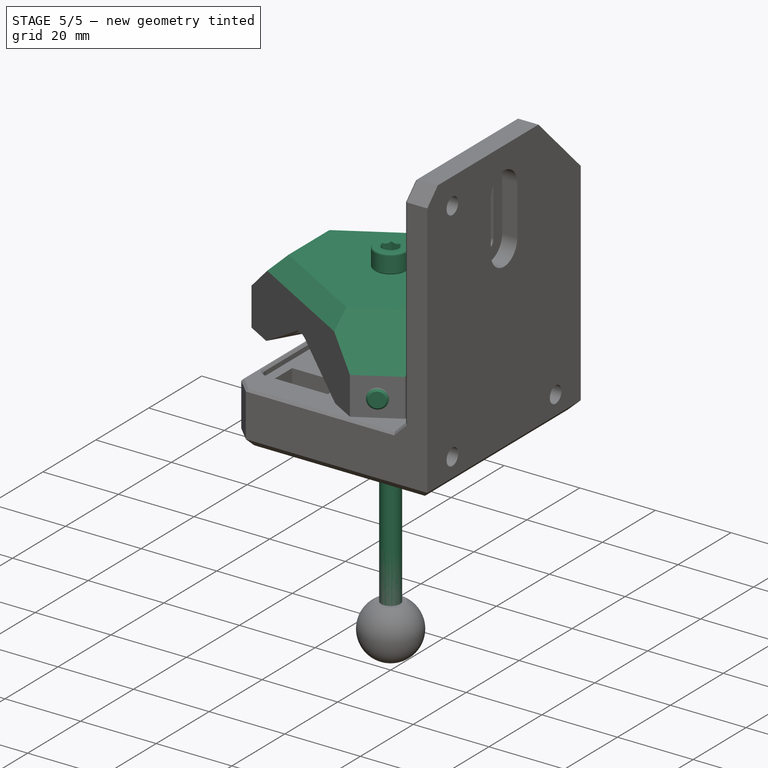
[diagram: stage 5 of 5 — iso view after this stage's code; geometry added in this stage tinted green]
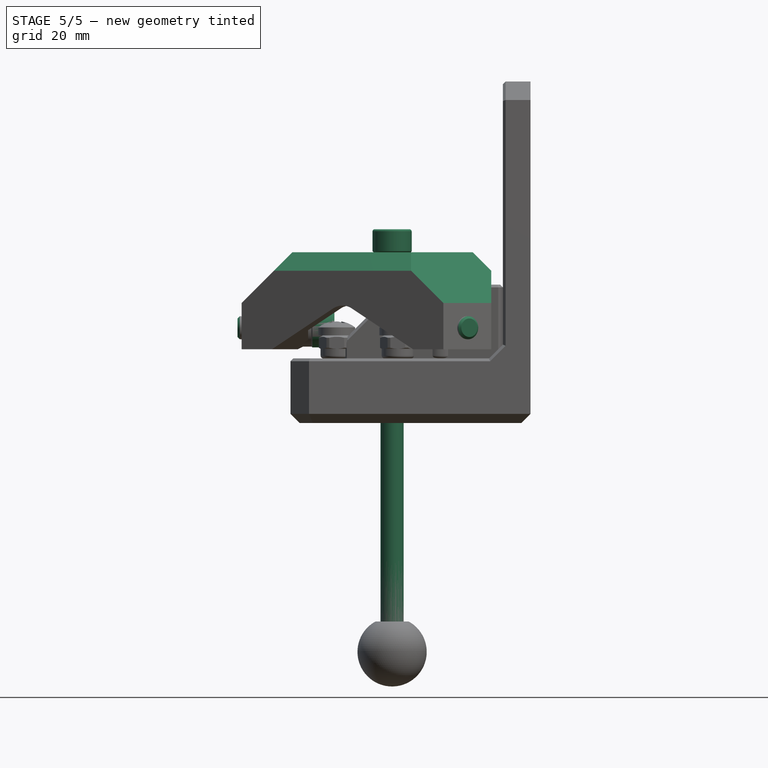
[diagram: stage 5 of 5 — front view after this stage's code; geometry added in this stage tinted green]
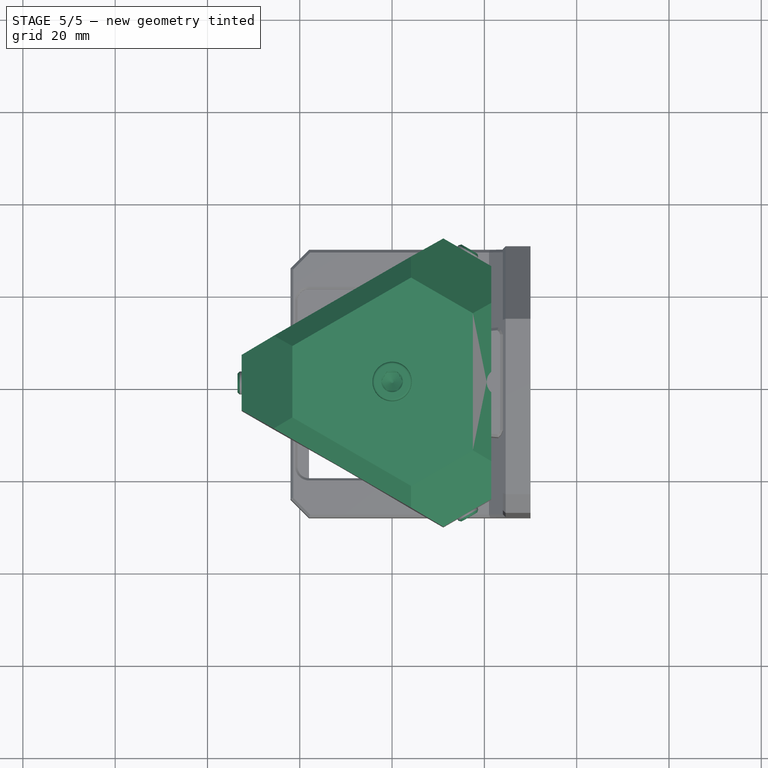
[diagram: stage 5 of 5 — top view after this stage's code; geometry added in this stage tinted green]
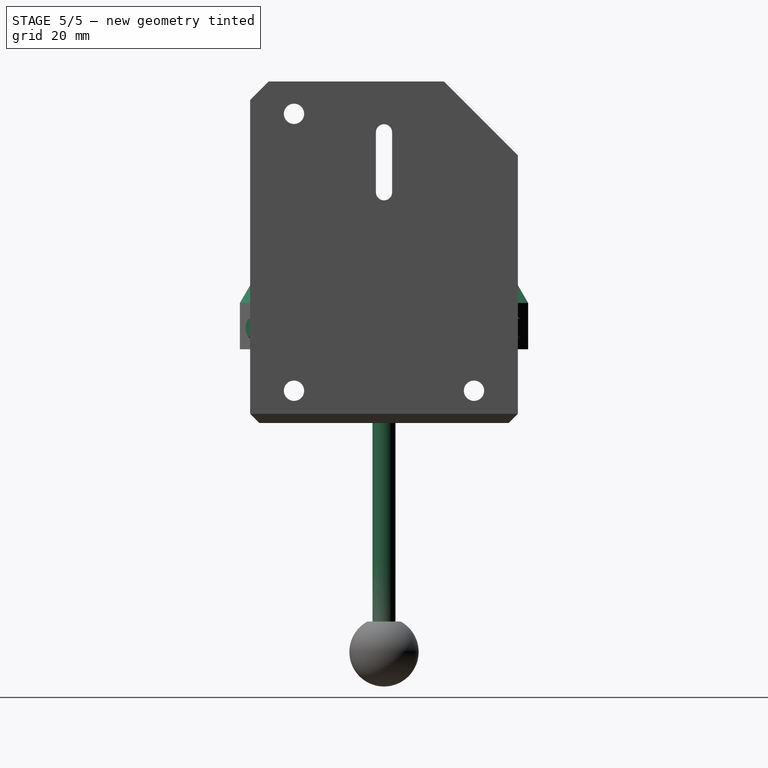
[diagram: stage 5 of 5 — right view after this stage's code; geometry added in this stage tinted green]
FEATURE [Part::FeaturePython] Screw001  label="M5x16-Screw"  # Fasteners workbench fastener (typed FeaturePython)
  Placement = pos=(-17.5,0,6.65) rot=(0,1,0;1.5708rad)
  diameter = 6
  invert = false
  length = 4
  lengthCustom = 16
  matchOuter = false
  offset = 0
  thread = false
  type = 34
  expr: .Placement.Base.z = dd.ddHor_screw_height
FEATURE [Part::FeaturePython] Array002  # Draft array (typed FeaturePython)
  Angle = 360
  ArrayType = 1
  Axis = (0,0,1)
  Base = -> Screw001
  Center = (0,0,0)
  Count = 3
  ExpandArray = false
  Fuse = false
  IntervalAxis = (0,0,0)
  IntervalX = (50,0,0)
  IntervalY = (0,50,0)
  IntervalZ = (0,0,50)
  NumberCircles = 3
  NumberPolar = 3
  NumberX = 2
  NumberY = 2
  NumberZ = 1
  PlacementList = 3 placements: [(-17.5,0,6.65),(8.75,-15.1554,6.65),(8.75,15.1554,6.65)]
  RadialDistance = 50
  ScaleList = (3) [(1,1,1),(1,1,1),(1,1,1)]
  Symmetry = 1
  TangentialDistance = 25
FEATURE [PartDesign::Chamfer] Chamfer001
  Angle = 45
  Base = -> PolarPattern002 [Edge98,Edge81,Edge117]
  BaseFeature = -> PolarPattern002
  ChamferType = 0
  FlipDirection = false
  Size = 0.6
  Size2 = 1
  SupportTransform = false
FEATURE [Sketcher::SketchObject] Sketch004
  FullyConstrained = true
  MapMode = 5
  Placement = pos=(0,0,23) rot=(0,0,1;0rad)
  Support = -> [Chamfer001]
  sketch-geometry (8):
    g0: LineSegment StartX=0 StartY=21 StartZ=0 EndX=-18.1865 EndY=10.5 EndZ=0
    g1: LineSegment StartX=-18.1865 StartY=10.5 StartZ=0 EndX=-18.1865 EndY=-10.5 EndZ=0
    g2: LineSegment StartX=-18.1865 StartY=-10.5 StartZ=0 EndX=-1.386e-13 EndY=-21 EndZ=0
    g3: LineSegment StartX=-1.386e-13 StartY=-21 StartZ=0 EndX=18.1865 EndY=-10.5 EndZ=0
    g4: LineSegment StartX=18.1865 StartY=-10.5 StartZ=0 EndX=18.1865 EndY=10.5 EndZ=0
    g5: LineSegment StartX=18.1865 StartY=10.5 StartZ=0 EndX=0 EndY=21 EndZ=0
    g6: Circle CenterX=0 CenterY=0 CenterZ=0 NormalX=0 NormalY=0 NormalZ=1 AngleXU=0 Radius=21
    g7: Circle CenterX=0 CenterY=0 CenterZ=0 NormalX=0 NormalY=0 NormalZ=1 AngleXU=0 Radius=2.575
  constraints (18):
    c: Coincident(g0,g1)
    c: Coincident(g1,g2)
    c: Coincident(g2,g3)
    c: Coincident(g3,g4)
    c: Coincident(g4,g5)
    c: Coincident(g5,g0)
    c: Equal(g0, g1-g5) x5
    c: PointOnObject(g0,g6)
    c: PointOnObject(g1,g6)
    c: PointOnObject(g2,g6)
    c: PointOnObject(g3,g6)
    c: PointOnObject(g4,g6)
    c: PointOnObject(g5,g6)
    c: Coincident(g6,g-1)
    c: PointOnObject(g5,g-2)
    c: DistanceY(g-1,g0) = 21
    c: Coincident(g7,g-1)
    c: Diameter(g7) = 5.15
FEATURE [PartDesign::Pad] Pad002
  BaseFeature = -> Chamfer001
  Direction = (1,1,1)
  Length = 11
  Length2 = 100
  Profile = -> Sketch004
  Refine = true
  Reversed = true
  Type = 0
FEATURE [PartDesign::Chamfer] Chamfer002
  Angle = 45
  Base = -> Pad002 [Edge9,Edge74,Edge87]
  BaseFeature = -> Pad002
  ChamferType = 0
  FlipDirection = false
  Size = 11
  Size2 = 1
  SupportTransform = false
FEATURE [PartDesign::Chamfer] Chamfer003
  Angle = 45
  Base = -> Chamfer002 [Edge30,Edge23,Edge8]
  BaseFeature = -> Chamfer002
  ChamferType = 0
  FlipDirection = false
  Size = 4
  Size2 = 1
  SupportTransform = false
FEATURE [PartDesign::Chamfer] Chamfer004
  Angle = 45
  Base = -> Chamfer003 [Edge48]
  BaseFeature = -> Chamfer003
  ChamferType = 0
  FlipDirection = false
  Size = 0.6
  Size2 = 1
  SupportTransform = false
FEATURE [Sketcher::SketchObject] Sketch005
  AttachmentOffset = pos=(0,0,22) rot=(0,0,1;0rad)
  FullyConstrained = true
  MapMode = 5
  Placement = pos=(22,-4.9e-15,4.9e-15) rot=(0.57735,0.57735,0.57735;2.0944rad)
  Support = -> [YZ_Plane002]
  expr: Constraints[1] = Pad.Length - Pad002.Length / 2 + 0.5mm
  sketch-geometry (1):
    g0: Circle CenterX=0 CenterY=17 CenterZ=0 NormalX=0 NormalY=0 NormalZ=1 AngleXU=0 Radius=2.4
  constraints (3):
    c: PointOnObject(g0,g-2)
    c: DistanceY(g-1,g0) = 17
    c: Diameter(g0) = 4.8
FEATURE [Part::FeaturePython] Screw004  label="M5x90-Screw"  # Fasteners workbench fastener (typed FeaturePython)
  Placement = pos=(0,0,23) rot=(0,0,1;0rad)
  diameter = 6
  invert = false
  length = 12
  lengthCustom = 90
  matchOuter = false
  offset = 0
  thread = false
  type = 34
  expr: .Placement.Base.z = Pad.Length + 1mm
FEATURE [Part::FeaturePython] Screw005  label="M5x10-Screw"  # Fasteners workbench fastener (typed FeaturePython)
  Placement = pos=(13,0,17.5) rot=(0,1,0;1.5708rad)
  diameter = 8
  invert = false
  length = 3
  lengthCustom = 10
  matchOuter = false
  offset = 0
  thread = false
  type = 30
FEATURE [Sketcher::SketchObject] Sketch006
  FullyConstrained = true
  MapMode = 5
  Placement = pos=(0,0,0) rot=(0.57735,0.57735,0.57735;2.0944rad)
  Support = -> [YZ_Plane002]
  expr: Constraints[2] = Pad.Length + 1mm
  sketch-geometry (1):
    g0: Circle CenterX=9 CenterY=23 CenterZ=0 NormalX=0 NormalY=0 NormalZ=1 AngleXU=0 Radius=1.5
  constraints (3):
    c: Diameter(g0) = 3
    c: DistanceX(g-2,g0) = 9
    c: DistanceY(g-1,g0) = 23
FEATURE [Sketcher::SketchObject] Sketch007
  FullyConstrained = true
  MapMode = 5
  Support = -> [XY_Plane002]
  sketch-geometry (1):
    g0: Circle CenterX=0 CenterY=0 CenterZ=0 NormalX=0 NormalY=0 NormalZ=1 AngleXU=0 Radius=75
  constraints (2):
    c: Coincident(g0,g-1)
    c: Diameter(g0) = 150
FEATURE [PartDesign::Pocket] Pocket003
  BaseFeature = -> Chamfer004
  Length = 2
  Length2 = 100
  Profile = -> Sketch007
  Reversed = true
  Type = 0
FEATURE [PartDesign::Hole] Hole
  BaseFeature = -> Pocket003
  Depth = 25
  DepthType = 0
  Diameter = 4.8
  DrillForDepth = false
  DrillPoint = 1
  DrillPointAngle = 118
  HoleCutCountersinkAngle = 90
  HoleCutCustomValues = false
  HoleCutDepth = 8
  HoleCutDiameter = 6
  HoleCutType = 1
  ModelActualThread = false
  Profile = -> Sketch005
  Tapered = false
  TaperedAngle = 90
  ThreadAngle = 0
  ThreadClass = 0
  ThreadCutOffInner = 0
  ThreadCutOffOuter = 0
  ThreadDirection = 0
  ThreadFit = 0
  ThreadPitch = 0
  ThreadSize = 0
  ThreadType = 0
  Threaded = false
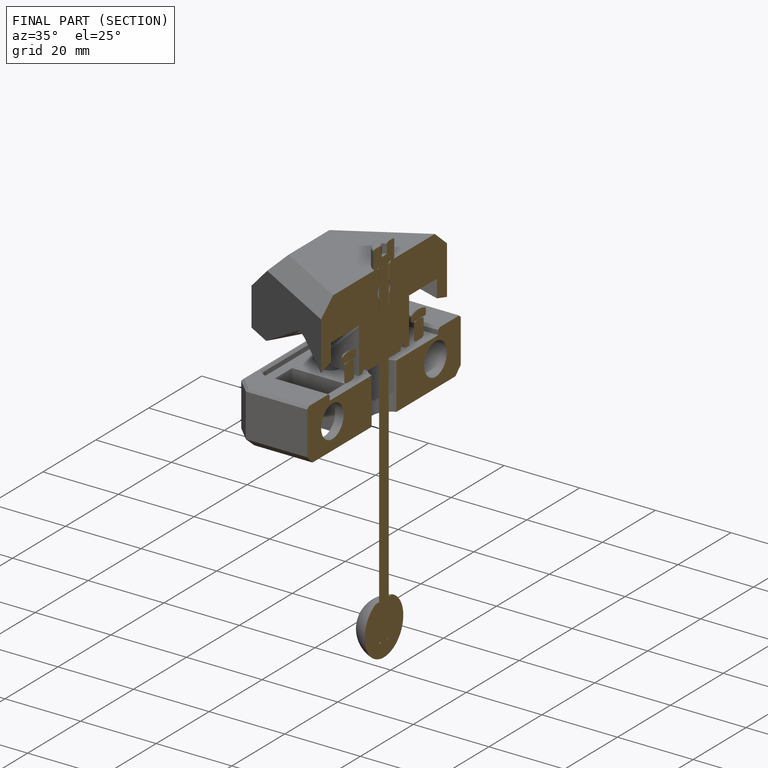
[diagram: finished part — half-section view (interior)]
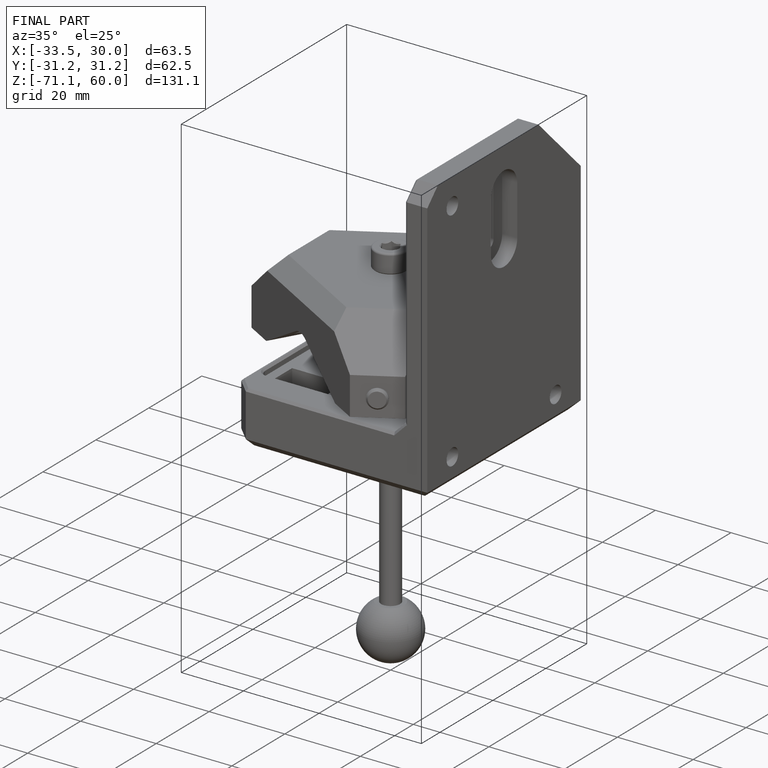
[diagram: finished part — iso view with bounding-box wireframe]
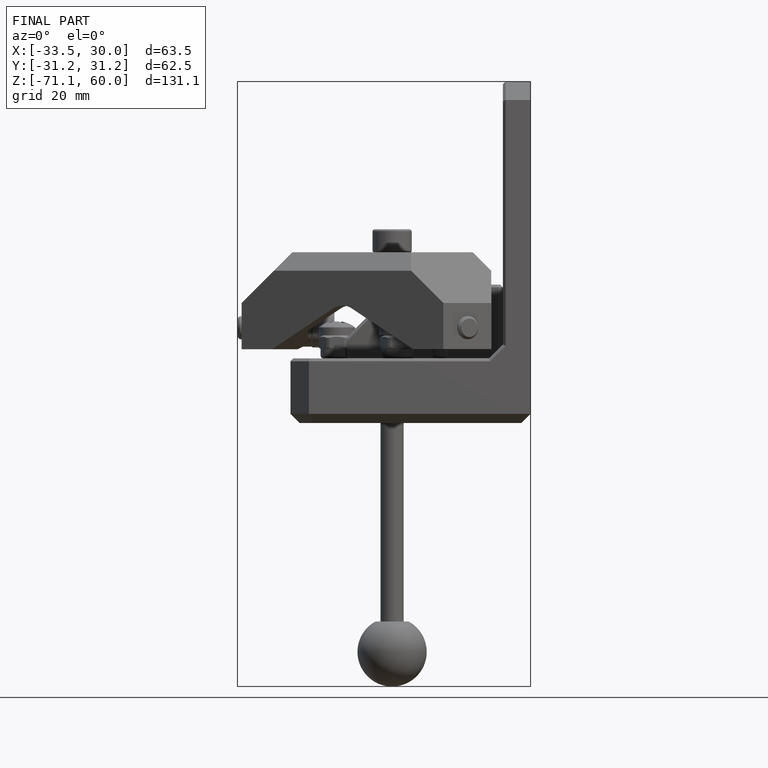
[diagram: finished part — front view with bounding-box wireframe]
